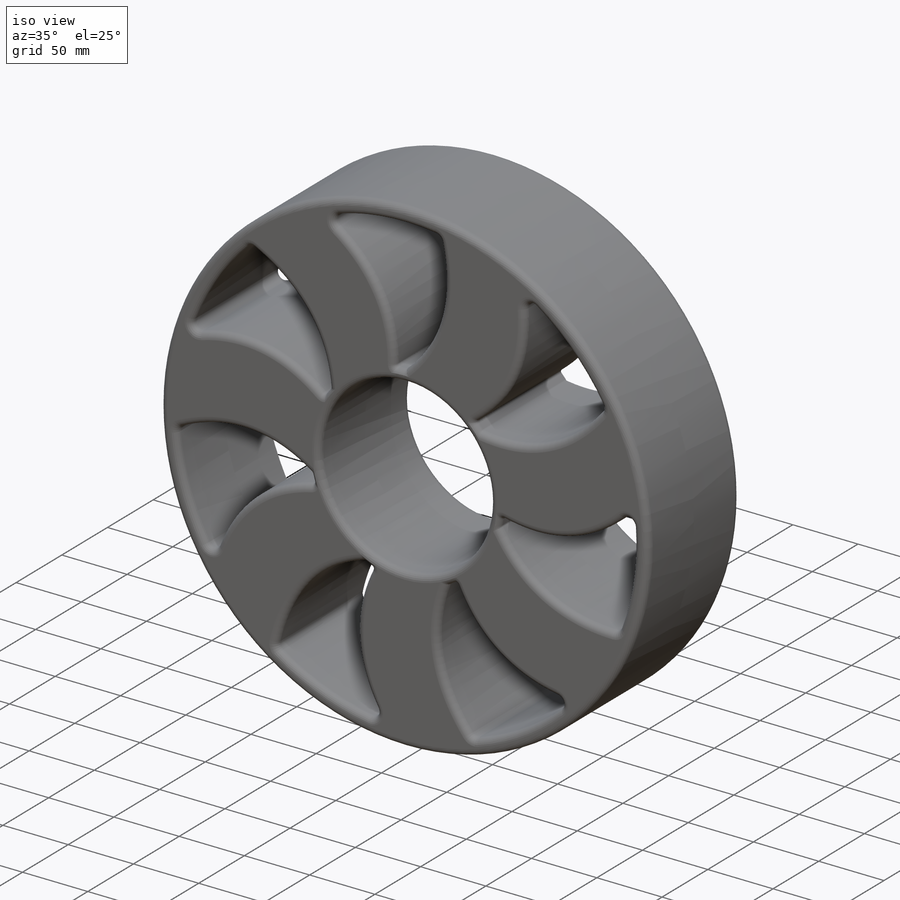
[diagram: iso view]
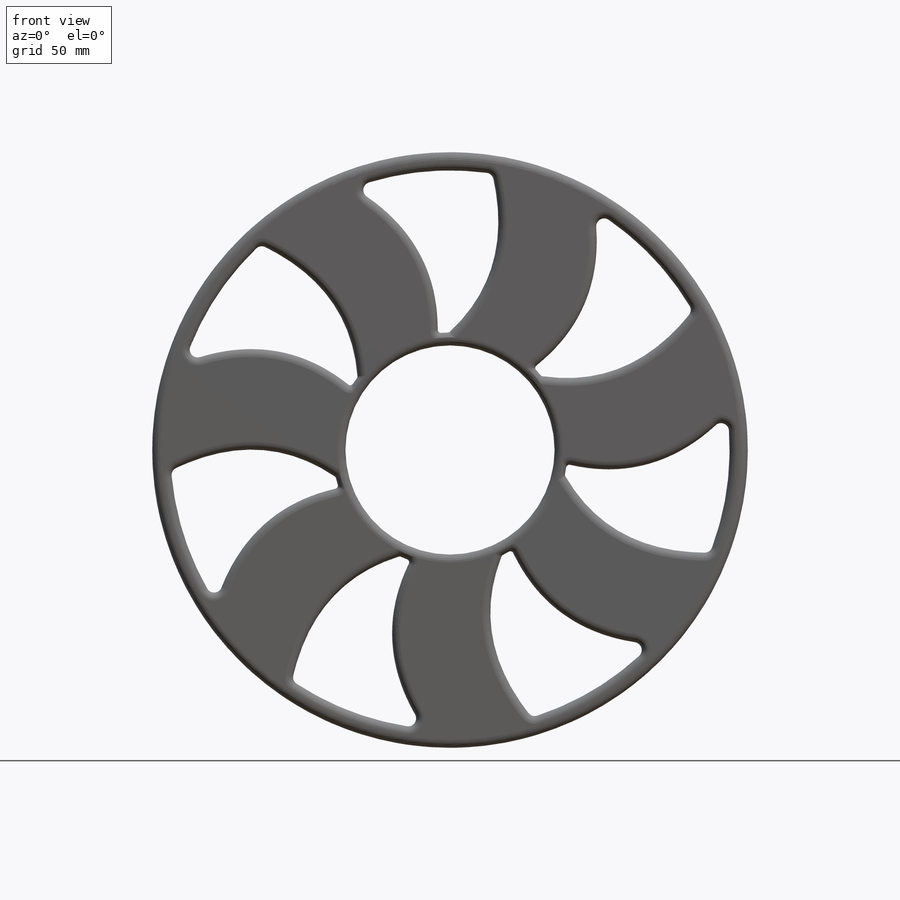
[diagram: front view]
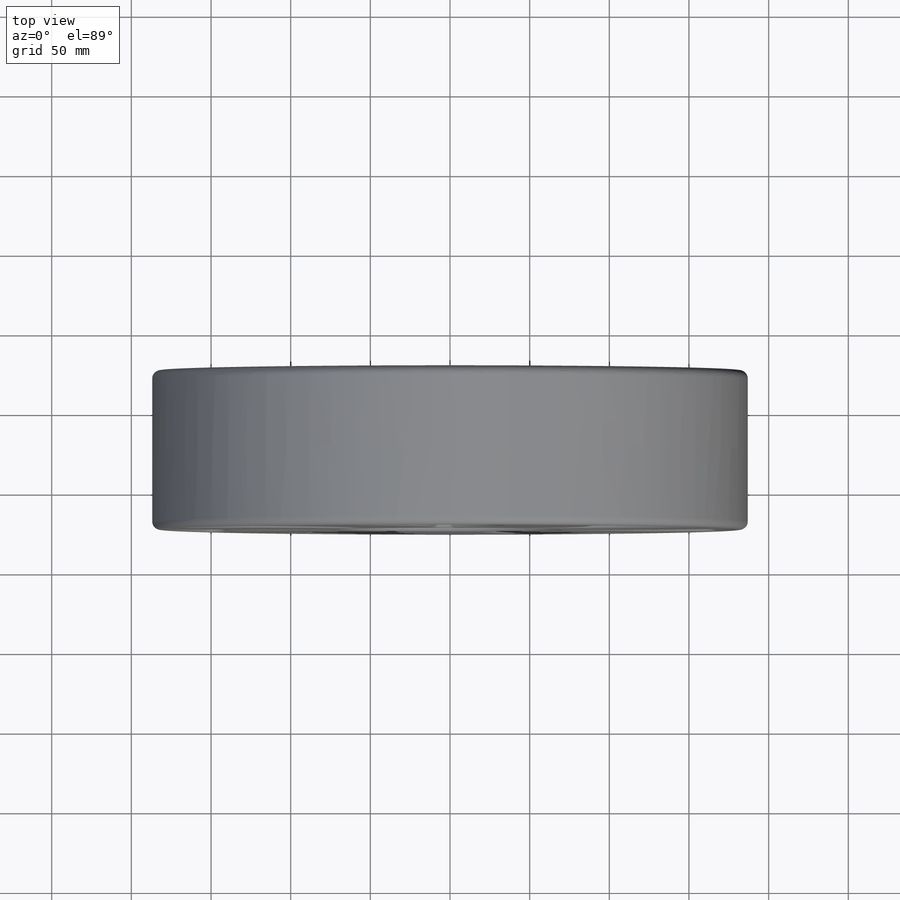
[diagram: top view]
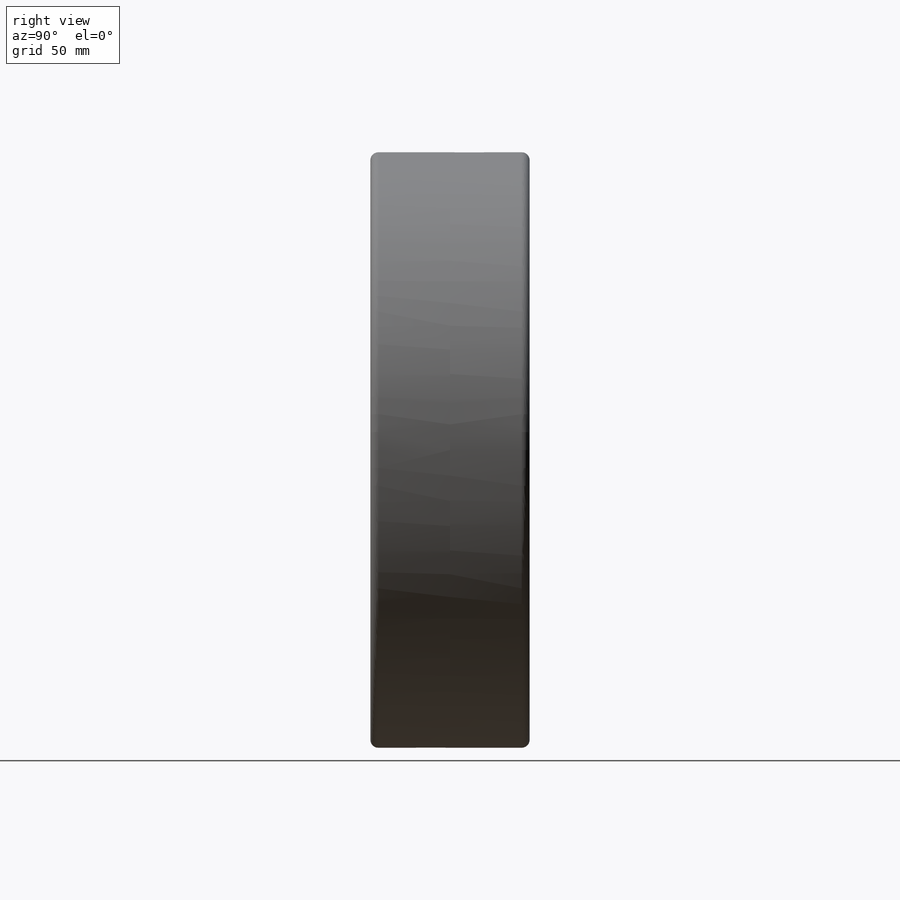
[diagram: right view]
SOLIDWORKS PART (.sldprt)
format: sldprt  version: not decoded by parser v0  size: 1,849,856 bytes
history: native  units: mm
features: sketch x16, cut_extrude x9, extrude x4, fillet x4, plane x3, cut_revolve x2, material x1, sweep x1, mirror x1 (+11 scaffold rows collapsed)
feature tree (52):
  scaffold x11  (default folders/planes/origin — collapsed)
  material  "Material <not specified>"
  sketch  "Sketch1"  dims[D1=500.0mm]
  extrude  "Boss-Extrude1"  Depth=250mm
  sketch  "Sketch3"
  cut_extrude  "Cut-Extrude1"  Depth=250mm
  sketch  "Sketch4"
  cut_revolve  "Cut-Revolve1"  Angle=360deg
  sketch  "Sketch5"
  extrude  "Boss-Extrude2"  [1 undecoded]
  sketch  "Sketch6"
  cut_extrude  "Cut-Extrude2"  Depth=250mm
  sketch  "Sketch7"
  extrude  "Boss-Extrude3"  Depth=202mm
  sketch  "Sketch9"
  cut_extrude  "Cut-Extrude4"  Depth=49mm
  plane  "Plane1"  Offset=125mm
  sketch  "Sketch10"
  extrude  "Boss-Extrude5"  Depth=50mm
  sketch  "Sketch11"  dims[D1=2.0mm D2=5.0mm D3=7.0]
  cut_extrude  "Cut-Extrude6"  Depth=287mm
  fillet  "Fillet1"  Radius=5mm
  fillet  "Fillet2"  Radius=5mm
  fillet  "Fillet3"  Radius=5mm
  sketch  "Sketch12"
  sweep  "Sweep1"
  sketch  "Sketch13"
  cut_extrude  "Cut-Extrude7"  Depth=43mm
  fillet  "Fillet4"  Radius=5mm
  sketch  "Sketch14"
  cut_extrude  "Cut-Extrude8"  Depth=523mm
  mirror  "Mirror1"
  sketch  "Sketch16"
  cut_revolve  "Cut-Revolve8"  Angle=360deg
  sketch  "Sketch17"  dims[D1=6.0]
  cut_extrude  "Cut-Extrude9"  Depth=220mm
  plane  "Plane2"  Offset=20mm
  sketch  "Sketch18"
  cut_extrude  "Cut-Extrude10"  Depth=34mm
  plane  "Plane3"  Offset=20mm
  sketch  "Sketch19"
  cut_extrude  "Cut-Extrude11"  Depth=39mm
decode coverage: 21 of 37 modeling features carry decoded parameters
note: 1 parameter value undecoded
note: suppression state not decoded; provenance and decode notes live in map.json
